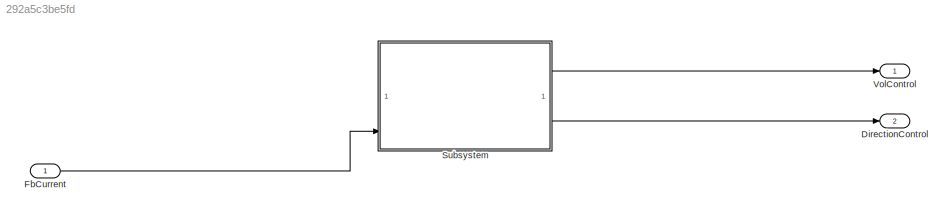
MODEL mdl_292a5c3be5fd
KIND model
CONFIG AbsTol = auto
CONFIG EnableMultiTasking = off
CONFIG FixedStep = auto
CONFIG MaxStep = auto
CONFIG MinStep = auto
CONFIG RelTol = 1e-3
CONFIG SampleTimeConstraint = Unconstrained
CONFIG SolverName = VariableStepAuto
CONFIG StartTime = 0.0
CONFIG StopTime = 10.0
BLOCK [Outport] DirectionControl
  Port = 2
BLOCK [Inport] FbCurrent
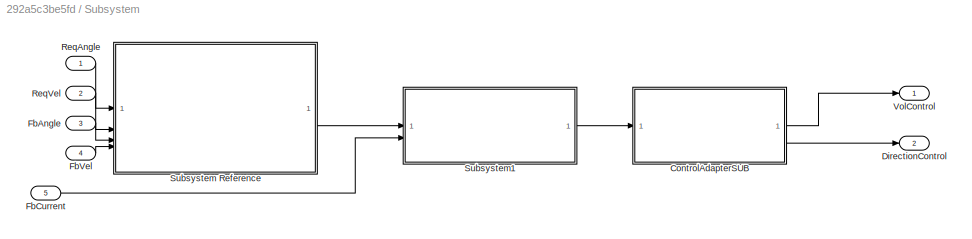
BLOCK [SubSystem] Subsystem
BLOCK [SubSystem] Subsystem/ControlAdapterSUB
  ReferencedSubsystem = ControlAdapterSUB
BLOCK [Outport] Subsystem/DirectionControl
  Port = 2
BLOCK [Inport] Subsystem/FbAngle
  Port = 3
BLOCK [Inport] Subsystem/FbCurrent
  Port = 5
BLOCK [Inport] Subsystem/FbVel
  Port = 4
BLOCK [Inport] Subsystem/ReqAngle
BLOCK [Inport] Subsystem/ReqVel
  Port = 2
BLOCK [SubSystem] Subsystem/Subsystem Reference
  ReferencedSubsystem = HighLevelControlSUB
BLOCK [SubSystem] Subsystem/Subsystem1
  ReferencedSubsystem = LowLevelControllerSUB
BLOCK [Outport] Subsystem/VolControl
BLOCK [Outport] VolControl
LINE FbCurrent:1 -> Subsystem:5
LINE Subsystem/ControlAdapterSUB:1 -> Subsystem/VolControl:1
LINE Subsystem/ControlAdapterSUB:2 -> Subsystem/DirectionControl:1
LINE Subsystem/FbAngle:1 -> Subsystem/Subsystem Reference:3
LINE Subsystem/FbCurrent:1 -> Subsystem/Subsystem1:2
LINE Subsystem/FbVel:1 -> Subsystem/Subsystem Reference:4
LINE Subsystem/ReqAngle:1 -> Subsystem/Subsystem Reference:1
LINE Subsystem/ReqVel:1 -> Subsystem/Subsystem Reference:2
LINE Subsystem/Subsystem Reference:1 -> Subsystem/Subsystem1:1
LINE Subsystem/Subsystem1:1 -> Subsystem/ControlAdapterSUB:1
LINE Subsystem:1 -> VolControl:1
LINE Subsystem:2 -> DirectionControl:1
